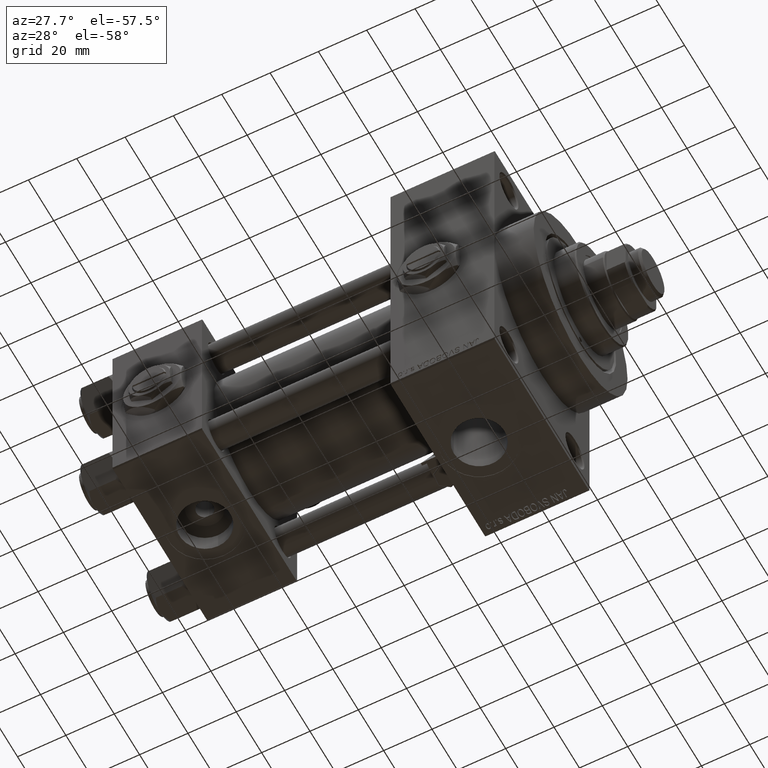
[diagram: clean part render]
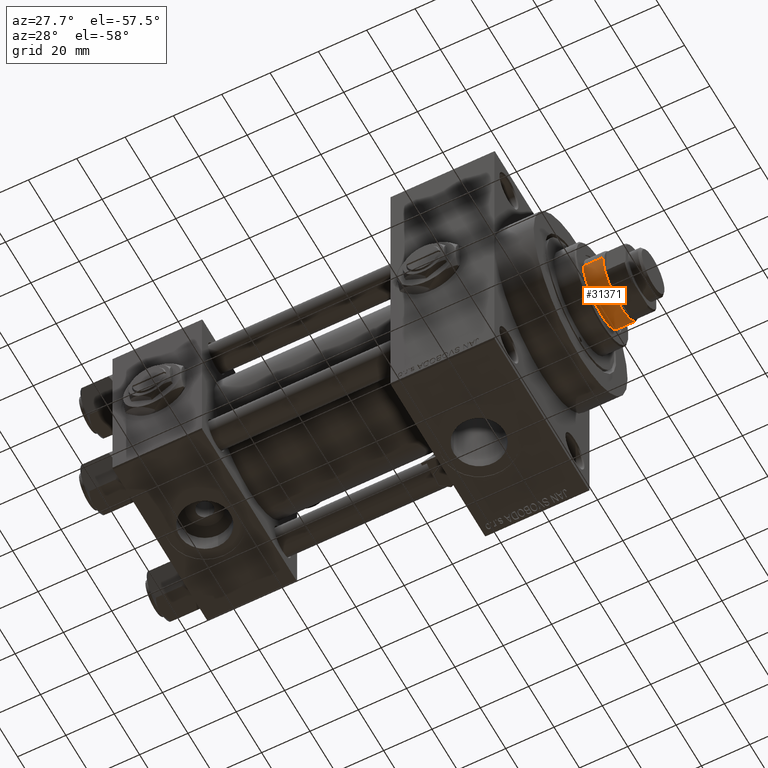
[diagram: same view with one face highlighted and labeled with its STEP entity id]
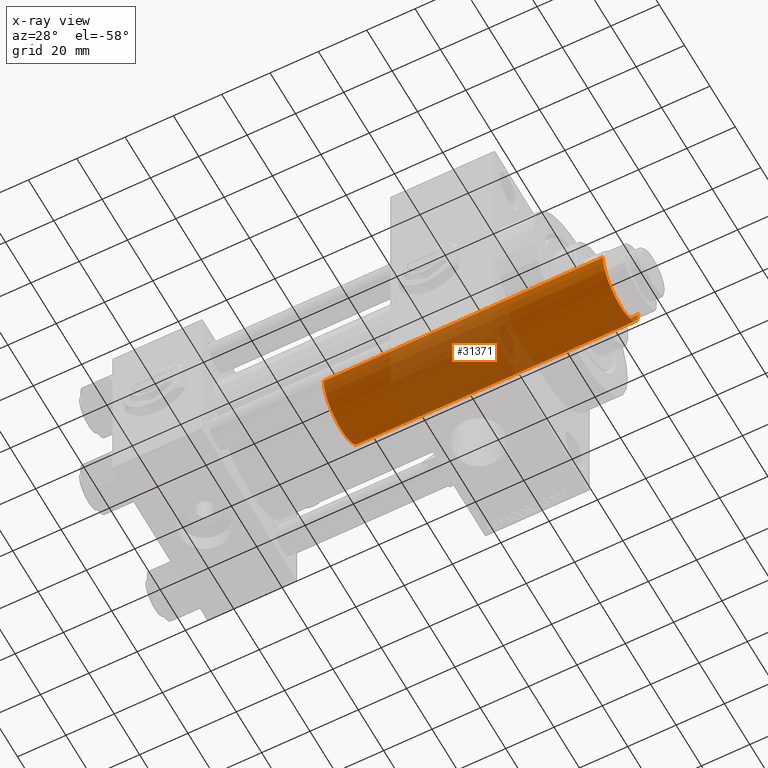
[diagram: x-ray of the same camera — body ghosted, the highlighted face saturated]
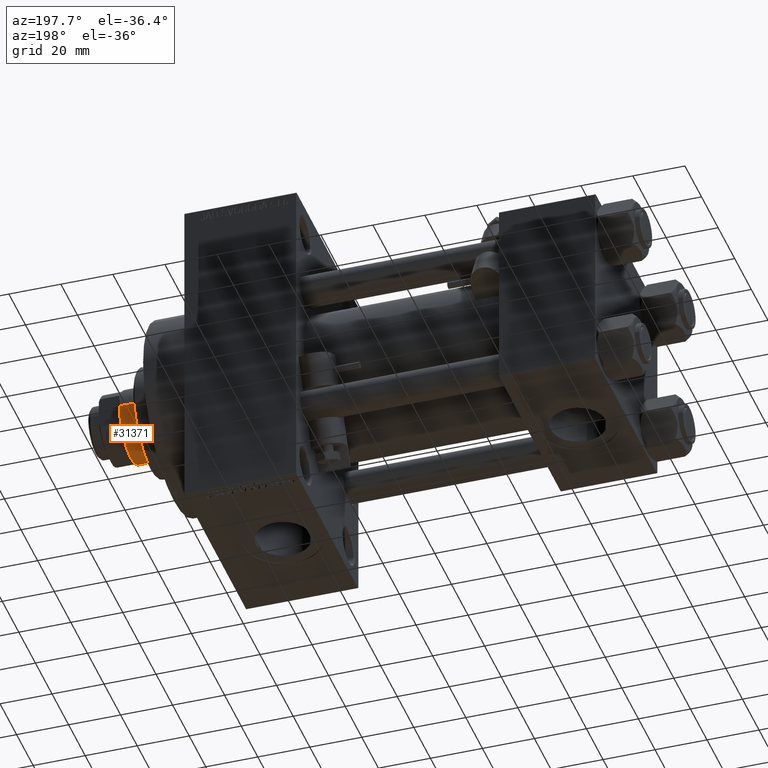
[diagram: same view with one face highlighted and labeled with its STEP entity id]
A machine part, auxiliary view. The second image highlights one B-rep face of the part: STEP entity #31371.
The next image is the same camera in x-ray: the body ghosted, the highlighted face saturated — about 49% of this face is hidden behind the body in this view.
A second angle (auxiliary view) of the same face is appended — the face is thin or edge-on in the first view.
In plain terms, the highlighted cylindrical surface (partial cylindrical patch) has radius 14 mm, axis along (-1, 0, 0).
Its self-contained STEP definition (entity closure, byte-faithful):
#23 = AXIS2_PLACEMENT_3D ( 'NONE', #47801, #51723, #38659 ) ;
#2965 = EDGE_CURVE ( 'NONE', #35820, #28421, #15893, .T. ) ;
#4292 = CARTESIAN_POINT ( 'NONE',  ( 14.00000000000000178, 1.714505518806294441E-15, 153.5000000000001421 ) ) ;
#5683 = CARTESIAN_POINT ( 'NONE',  ( 0.000000000000000000, 0.000000000000000000, 153.5000000000001421 ) ) ;
#6952 = CARTESIAN_POINT ( 'NONE',  ( 14.00000000000000178, 1.714505518806294441E-15, 154.0000000000000000 ) ) ;
#7401 = AXIS2_PLACEMENT_3D ( 'NONE', #33129, #17412, #28944 ) ;
#8087 = VERTEX_POINT ( 'NONE', #4292 ) ;
#11122 = DIRECTION ( 'NONE',  ( -0.000000000000000000, -0.000000000000000000, -1.000000000000000000 ) ) ;
#12686 = CARTESIAN_POINT ( 'NONE',  ( -14.00000000000000178, 0.000000000000000000, 153.5000000000001421 ) ) ;
#13812 = CARTESIAN_POINT ( 'NONE',  ( -14.00000000000000178, 0.000000000000000000, 38.00000000000000000 ) ) ;
#14291 = DIRECTION ( 'NONE',  ( 0.000000000000000000, 0.000000000000000000, -1.000000000000000000 ) ) ;
#15051 = LINE ( 'NONE', #6952, #22507 ) ;
#15409 = VECTOR ( 'NONE', #44168, 1000.000000000000000 ) ;
#15893 = CIRCLE ( 'NONE', #23, 14.00000000000000178 ) ;
#17412 = DIRECTION ( 'NONE',  ( -0.000000000000000000, -0.000000000000000000, -1.000000000000000000 ) ) ;
#18083 = ORIENTED_EDGE ( 'NONE', *, *, #35711, .T. ) ;
#20918 = AXIS2_PLACEMENT_3D ( 'NONE', #5683, #14291, #26318 ) ;
#21760 = EDGE_CURVE ( 'NONE', #8087, #35820, #15051, .T. ) ;
#22507 = VECTOR ( 'NONE', #11122, 1000.000000000000000 ) ;
#23420 = CIRCLE ( 'NONE', #20918, 14.00000000000000178 ) ;
#24395 = VERTEX_POINT ( 'NONE', #12686 ) ;
#26318 = DIRECTION ( 'NONE',  ( 1.000000000000000000, 0.000000000000000000, 0.000000000000000000 ) ) ;
#28421 = VERTEX_POINT ( 'NONE', #13812 ) ;
#28944 = DIRECTION ( 'NONE',  ( -1.000000000000000000, 0.000000000000000000, 0.000000000000000000 ) ) ;
#31290 = CARTESIAN_POINT ( 'NONE',  ( 14.00000000000000178, 1.714505518806294441E-15, 38.00000000000000000 ) ) ;
#31371 = ADVANCED_FACE ( 'NONE', ( #45397 ), #38064, .T. ) ;
#33129 = CARTESIAN_POINT ( 'NONE',  ( 0.000000000000000000, 0.000000000000000000, 154.0000000000000000 ) ) ;
#35711 = EDGE_CURVE ( 'NONE', #24395, #8087, #23420, .T. ) ;
#35820 = VERTEX_POINT ( 'NONE', #31290 ) ;
#36331 = CARTESIAN_POINT ( 'NONE',  ( -14.00000000000000178, 0.000000000000000000, 154.0000000000000000 ) ) ;
#38064 = CYLINDRICAL_SURFACE ( 'NONE', #7401, 14.00000000000000178 ) ;
#38659 = DIRECTION ( 'NONE',  ( 1.000000000000000000, 0.000000000000000000, 0.000000000000000000 ) ) ;
#44051 = ORIENTED_EDGE ( 'NONE', *, *, #2965, .T. ) ;
#44168 = DIRECTION ( 'NONE',  ( -0.000000000000000000, -0.000000000000000000, -1.000000000000000000 ) ) ;
#44972 = ORIENTED_EDGE ( 'NONE', *, *, #21760, .T. ) ;
#45397 = FACE_OUTER_BOUND ( 'NONE', #48426, .T. ) ;
#46480 = ORIENTED_EDGE ( 'NONE', *, *, #48584, .F. ) ;
#47801 = CARTESIAN_POINT ( 'NONE',  ( 0.000000000000000000, 0.000000000000000000, 38.00000000000000000 ) ) ;
#48426 = EDGE_LOOP ( 'NONE', ( #18083, #44972, #44051, #46480 ) ) ;
#48584 = EDGE_CURVE ( 'NONE', #24395, #28421, #48627, .T. ) ;
#48627 = LINE ( 'NONE', #36331, #15409 ) ;
#51723 = DIRECTION ( 'NONE',  ( 0.000000000000000000, 0.000000000000000000, 1.000000000000000000 ) ) ;